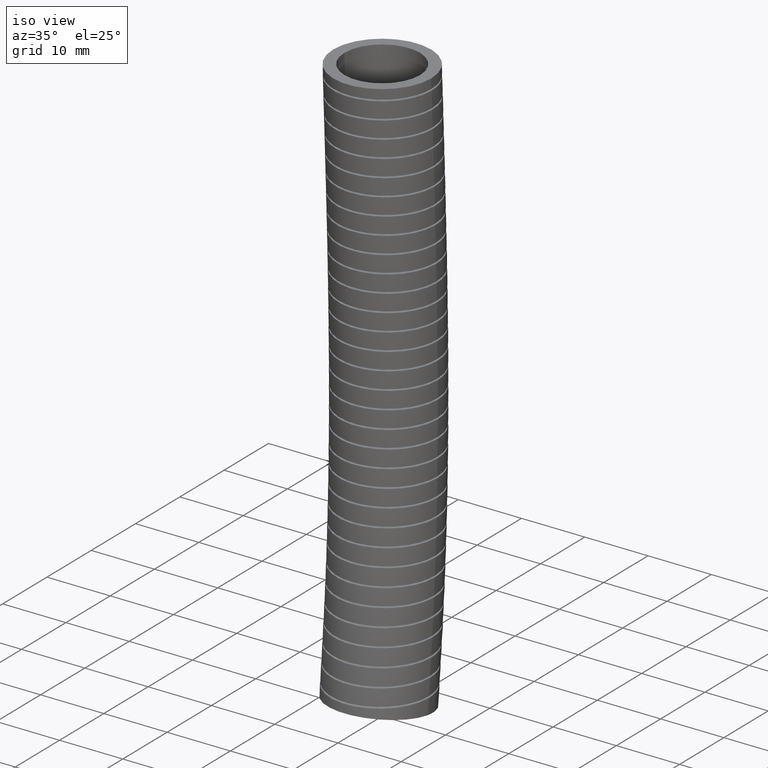
[diagram: clean part render]
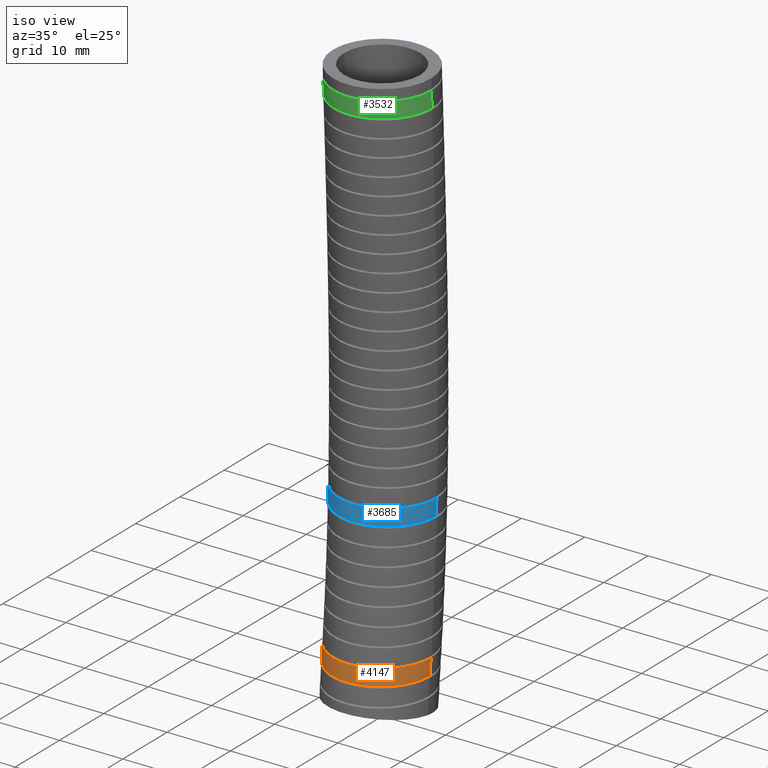
[diagram: same view with three faces highlighted in distinct colors, each labeled with its STEP entity id]
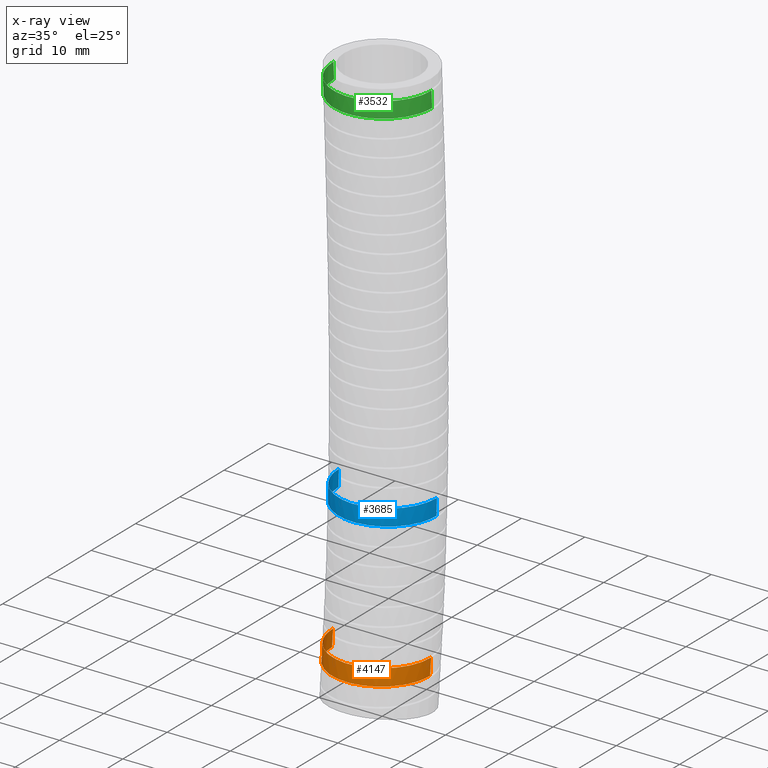
[diagram: x-ray of the same camera — body ghosted, the three highlighted faces saturated]
A machine part, iso view with three faces highlighted in distinct colors.
The next image is the same camera in x-ray (body ghosted, the three faces saturated) — at least one of them is partly hidden behind the body in this view.
Their STEP definitions:

[orange] entity #4147 — the highlighted face is a freeform B-spline surface patch.
#913 = CARTESIAN_POINT ( 'NONE',  ( -0.3030113365234432500, -0.04108837552844942000, -3.257299729500542800 ) ) ;
#914 = CARTESIAN_POINT ( 'NONE',  ( -0.2952359702919878900, -0.08023356019376953800, -3.257299729500542400 ) ) ;
#915 = CARTESIAN_POINT ( 'NONE',  ( -0.2894851474871009100, -0.09928313035796333700, -3.257299729500544600 ) ) ;
#916 = CARTESIAN_POINT ( 'NONE',  ( -0.2780288827015268100, -0.1270630369977044600, -3.257299729500544600 ) ) ;
#917 = CARTESIAN_POINT ( 'NONE',  ( -0.2737103979975252200, -0.1362279739294547100, -3.257299729500540100 ) ) ;
#918 = CARTESIAN_POINT ( 'NONE',  ( -0.2642854748717035100, -0.1539146598673039600, -3.257299729500541500 ) ) ;
#919 = CARTESIAN_POINT ( 'NONE',  ( -0.2591678966826095900, -0.1624747651432519900, -3.257299729500542400 ) ) ;
#920 = CARTESIAN_POINT ( 'NONE',  ( -0.2426242970605107000, -0.1873224864810883700, -3.257299729500543700 ) ) ;
#921 = CARTESIAN_POINT ( 'NONE',  ( -0.2299955393544777800, -0.2028094666097088600, -3.257299729500542800 ) ) ;
#922 = CARTESIAN_POINT ( 'NONE',  ( -0.2015338750742384200, -0.2313789863875006000, -3.257299729500541900 ) ) ;
#923 = CARTESIAN_POINT ( 'NONE',  ( -0.1861320974285784200, -0.2440378974267492800, -3.257299729500541900 ) ) ;
#924 = CARTESIAN_POINT ( 'NONE',  ( -0.1613364428609464200, -0.2606755630004499200, -3.257299729500541900 ) ) ;
#925 = CARTESIAN_POINT ( 'NONE',  ( -0.1527869834357760100, -0.2658267847499014600, -3.257299729500543700 ) ) ;
#926 = CARTESIAN_POINT ( 'NONE',  ( -0.1351051303766813400, -0.2753198285728689100, -3.257299729500542400 ) ) ;
#927 = CARTESIAN_POINT ( 'NONE',  ( -0.1259579582082928900, -0.2796607407075472600, -3.257299729500543700 ) ) ;
#928 = CARTESIAN_POINT ( 'NONE',  ( -0.09824142539255446800, -0.2911748160275767800, -3.257299729500542800 ) ) ;
#929 = CARTESIAN_POINT ( 'NONE',  ( -0.07920717341498902100, -0.2969670241820530100, -3.257299729500540100 ) ) ;
#930 = CARTESIAN_POINT ( 'NONE',  ( -0.04982420804945404700, -0.3028406000814025100, -3.257299729500541500 ) ) ;
#931 = CARTESIAN_POINT ( 'NONE',  ( -0.03984181917484418100, -0.3043301330608929600, -3.257299729500542400 ) ) ;
#932 = CARTESIAN_POINT ( 'NONE',  ( -0.01982304993927612400, -0.3063033753000968300, -3.257299729500543700 ) ) ;
#933 = CARTESIAN_POINT ( 'NONE',  ( -0.009838942171253681200, -0.3067874331805757200, -3.257299729500541500 ) ) ;
#934 = CARTESIAN_POINT ( 'NONE',  ( 0.02003974676161391500, -0.3067755822916862800, -3.257299729500541500 ) ) ;
#935 = CARTESIAN_POINT ( 'NONE',  ( 0.03986139915535288200, -0.3048296779818192600, -3.257299729500540600 ) ) ;
#936 = CARTESIAN_POINT ( 'NONE',  ( 0.06944345146055679000, -0.2989199930730189200, -3.257299729500540600 ) ) ;
#937 = CARTESIAN_POINT ( 'NONE',  ( 0.07923390780213723800, -0.2964511024617749700, -3.257299729500541900 ) ) ;
#938 = CARTESIAN_POINT ( 'NONE',  ( 0.09834203510598670000, -0.2906197970106317900, -3.257299729500542800 ) ) ;
#939 = CARTESIAN_POINT ( 'NONE',  ( 0.1170770472362686900, -0.2838764876986689100, -3.257299729500542400 ) ) ;
#940 = CARTESIAN_POINT ( 'NONE',  ( 0.1350756553977952900, -0.2753331892407188100, -3.257299729500540600 ) ) ;
#941 = CARTESIAN_POINT ( 'NONE',  ( 0.1527002858702273300, -0.2658757786788439900, -3.257299729500541500 ) ) ;
#942 = CARTESIAN_POINT ( 'NONE',  ( 0.1613719826634269200, -0.2606566291444307200, -3.257299729500542400 ) ) ;
#943 = CARTESIAN_POINT ( 'NONE',  ( 0.1863716571001015600, -0.2438672367914437900, -3.257299729500544100 ) ) ;
#944 = CARTESIAN_POINT ( 'NONE',  ( 0.2017216141646880300, -0.2311933043702474900, -3.257299729500542400 ) ) ;
#945 = CARTESIAN_POINT ( 'NONE',  ( 0.2298501019634840200, -0.2029526824587661900, -3.257299729500542400 ) ) ;
#946 = CARTESIAN_POINT ( 'NONE',  ( 0.2427208667521478200, -0.1872021266181922200, -3.257299729500542800 ) ) ;
#947 = CARTESIAN_POINT ( 'NONE',  ( 0.2648194137370358800, -0.1539615024946044700, -3.257299729500543700 ) ) ;
#948 = CARTESIAN_POINT ( 'NONE',  ( 0.2741714382221034400, -0.1364005282216115000, -3.257299729500541900 ) ) ;
#949 = CARTESIAN_POINT ( 'NONE',  ( 0.2856314913834013800, -0.1086358194928993700, -3.257299729500542800 ) ) ;
#950 = CARTESIAN_POINT ( 'NONE',  ( 0.2890318060516603400, -0.09909315087287468000, -3.257299729500541500 ) ) ;
#951 = CARTESIAN_POINT ( 'NONE',  ( 0.2948234588197345400, -0.07989902529516684800, -3.257299729500540600 ) ) ;
#952 = CARTESIAN_POINT ( 'NONE',  ( 0.2972319286272255300, -0.07021900760928045900, -3.257299729500542400 ) ) ;
#953 = CARTESIAN_POINT ( 'NONE',  ( 0.3030279026147748000, -0.04093564467334064000, -3.257299729500542400 ) ) ;
#954 = CARTESIAN_POINT ( 'NONE',  ( 0.3049999999999999400, -0.02109137741551087400, -3.257299729308426700 ) ) ;
#955 = CARTESIAN_POINT ( 'NONE',  ( 0.3049999999999999400, -0.0009114316352144768100, -3.257299729308426300 ) ) ;
#956 = B_SPLINE_CURVE_WITH_KNOTS ( 'NONE', 3,
 ( #955, #954, #953, #952, #951, #950, #949, #948, #947, #946, #945, #944, #943, #942, #941, #940, #939, #938, #937, #936, #935, #934, #933, #932, #931, #930, #929, #928, #927, #926, #925, #924, #923, #922, #921, #920, #919, #918, #917, #916, #915, #914, #913, #990, #989 ),
 .UNSPECIFIED., .F., .F.,
 ( 4, 2, 2, 2, 2, 2, 2, 2, 1, 2, 2, 2, 2, 2, 2, 2, 2, 2, 2, 2, 2, 2, 4 ),
 ( 0.0000000000000000000, 0.001515908611369039000, 0.002273862917053558300, 0.003031817222738077600, 0.004547725834107115700, 0.006063634445476153400, 0.007579543056845192000, 0.008337497362529710400, 0.009095451668214227900, 0.009853405973898747200, 0.01061136027958326500, 0.01212726889095230200, 0.01288522319663682100, 0.01364317750232134000, 0.01515908611369037500, 0.01591704041937489600, 0.01667499472505941700, 0.01819090333642845600, 0.01970681194779749400, 0.02046476625348201500, 0.02122272055916653300, 0.02273862917053557500, 0.02425453778190461400 ),
 .UNSPECIFIED. ) ;
#989 = CARTESIAN_POINT ( 'NONE',  ( -0.3050000000000000500, -0.0009114316692011314500, -3.257299729500542400 ) ) ;
#990 = CARTESIAN_POINT ( 'NONE',  ( -0.3050000000000000500, -0.02084508723958223100, -3.257299729500542400 ) ) ;
#4147 = ADVANCED_FACE ( 'NONE', ( #8789 ), #9129, .T. ) ;
#4221 = EDGE_CURVE ( 'NONE', #4294, #4300, #16607, .T. ) ;
#4294 = VERTEX_POINT ( 'NONE', #6402 ) ;
#4295 = EDGE_CURVE ( 'NONE', #4298, #4296, #6398, .T. ) ;
#4296 = VERTEX_POINT ( 'NONE', #6399 ) ;
#4297 = ORIENTED_EDGE ( 'NONE', *, *, #4299, .T. ) ;
#4298 = VERTEX_POINT ( 'NONE', #6400 ) ;
#4299 = EDGE_CURVE ( 'NONE', #4296, #4300, #6470, .T. ) ;
#4300 = VERTEX_POINT ( 'NONE', #6471 ) ;
#4302 = ORIENTED_EDGE ( 'NONE', *, *, #4221, .F. ) ;
#4304 = ORIENTED_EDGE ( 'NONE', *, *, #4327, .T. ) ;
#4325 = ORIENTED_EDGE ( 'NONE', *, *, #4295, .T. ) ;
#4326 = EDGE_LOOP ( 'NONE', ( #4304, #4325, #4297, #4302 ) ) ;
#4327 = EDGE_CURVE ( 'NONE', #4294, #4298, #956, .T. ) ;
#6398 = B_SPLINE_CURVE_WITH_KNOTS ( 'NONE', 3,
 ( #6475, #6474, #6473, #6472 ),
 .UNSPECIFIED., .F., .F.,
 ( 4, 4 ),
 ( 0.9121092750542080200, 0.9400877971328670500 ),
 .UNSPECIFIED. ) ;
#6399 = CARTESIAN_POINT ( 'NONE',  ( -0.3049999999999999400, -0.009911448503049463000, -3.356853065528679500 ) ) ;
#6400 = CARTESIAN_POINT ( 'NONE',  ( -0.3050000000000000500, -0.0009114316692011314500, -3.257299729500542400 ) ) ;
#6402 = CARTESIAN_POINT ( 'NONE',  ( 0.3049999999999999400, -0.0009114316352144768100, -3.257299729308426300 ) ) ;
#6439 = CARTESIAN_POINT ( 'NONE',  ( 0.1527078259657585200, -0.2749682113351590300, -3.356853065528682100 ) ) ;
#6440 = CARTESIAN_POINT ( 'NONE',  ( 0.1349927971651796700, -0.2844741568348622100, -3.356853065528681200 ) ) ;
#6441 = CARTESIAN_POINT ( 'NONE',  ( 0.1259640475500162800, -0.2887558627184434500, -3.356853065528679000 ) ) ;
#6442 = CARTESIAN_POINT ( 'NONE',  ( 0.09837795329793118400, -0.3002253253758056500, -3.356853065528679000 ) ) ;
#6443 = CARTESIAN_POINT ( 'NONE',  ( 0.07932559051245570400, -0.3060507125471228500, -3.356853065528679000 ) ) ;
#6444 = CARTESIAN_POINT ( 'NONE',  ( 0.04972190085577849600, -0.3119674279823643200, -3.356853065528678100 ) ) ;
#6445 = CARTESIAN_POINT ( 'NONE',  ( 0.03974693046850059900, -0.3134481059166359700, -3.356853065528681700 ) ) ;
#6446 = CARTESIAN_POINT ( 'NONE',  ( 0.01987218036339114300, -0.3154062901735444300, -3.356853065528683000 ) ) ;
#6447 = CARTESIAN_POINT ( 'NONE',  ( -1.351719192981374000E-005, -0.3163793041694900600, -3.356853065528680800 ) ) ;
#6448 = CARTESIAN_POINT ( 'NONE',  ( -0.01992086684158497400, -0.3154038279680456700, -3.356853065528679500 ) ) ;
#6449 = CARTESIAN_POINT ( 'NONE',  ( -0.03983923640904915600, -0.3134366600856161000, -3.356853065528679500 ) ) ;
#6450 = CARTESIAN_POINT ( 'NONE',  ( -0.04985730209139062300, -0.3119438853593490300, -3.356853065528679900 ) ) ;
#6451 = CARTESIAN_POINT ( 'NONE',  ( -0.07936420209146131900, -0.3060359013811490600, -3.356853065528679000 ) ) ;
#6452 = CARTESIAN_POINT ( 'NONE',  ( -0.09839875221471093600, -0.3002197602812017900, -3.356853065528675900 ) ) ;
#6453 = CARTESIAN_POINT ( 'NONE',  ( -0.1352189571502723500, -0.2849048623555057700, -3.356853065528677200 ) ) ;
#6454 = CARTESIAN_POINT ( 'NONE',  ( -0.1531434728608685500, -0.2752774266076596400, -3.356853065528679000 ) ) ;
#6455 = CARTESIAN_POINT ( 'NONE',  ( -0.1862598572323152500, -0.2530300494936074700, -3.356853065528679000 ) ) ;
#6456 = CARTESIAN_POINT ( 'NONE',  ( -0.2016179703481766600, -0.2403771390495932400, -3.356853065528679900 ) ) ;
#6457 = CARTESIAN_POINT ( 'NONE',  ( -0.2228326319907220100, -0.2190754104321681600, -3.356853065528679500 ) ) ;
#6458 = CARTESIAN_POINT ( 'NONE',  ( -0.2296193681834117500, -0.2115520564260327000, -3.356853065528678600 ) ) ;
#6459 = CARTESIAN_POINT ( 'NONE',  ( -0.2422879319445548600, -0.1960352221153848200, -3.356853065528679000 ) ) ;
#6460 = CARTESIAN_POINT ( 'NONE',  ( -0.2482053133748380600, -0.1880112750446067700, -3.356853065528679000 ) ) ;
#6461 = CARTESIAN_POINT ( 'NONE',  ( -0.2647328595493447800, -0.1631594696128227700, -3.356853065528679500 ) ) ;
#6462 = CARTESIAN_POINT ( 'NONE',  ( -0.2741477663858619700, -0.1455171649970006800, -3.356853065528679500 ) ) ;
#6463 = CARTESIAN_POINT ( 'NONE',  ( -0.2895175989868203900, -0.1082474899130656900, -3.356853065528679500 ) ) ;
#6464 = CARTESIAN_POINT ( 'NONE',  ( -0.2952598744401461800, -0.08915909823433916500, -3.356853065528676800 ) ) ;
#6465 = CARTESIAN_POINT ( 'NONE',  ( -0.3010700627940534600, -0.05987203347821661700, -3.356853065528678600 ) ) ;
#6466 = CARTESIAN_POINT ( 'NONE',  ( -0.3025361480508864100, -0.04999979585954689200, -3.356853065528679500 ) ) ;
#6467 = CARTESIAN_POINT ( 'NONE',  ( -0.3045042277361662000, -0.03003023146891961600, -3.356853065528678600 ) ) ;
#6468 = CARTESIAN_POINT ( 'NONE',  ( -0.3049999999999999400, -0.01991699837444335700, -3.356853065528676800 ) ) ;
#6469 = CARTESIAN_POINT ( 'NONE',  ( -0.3049999999999999400, -0.009911448503049463000, -3.356853065528679500 ) ) ;
#6470 = B_SPLINE_CURVE_WITH_KNOTS ( 'NONE', 3,
 ( #6469, #6468, #6467, #6466, #6465, #6464, #6463, #6462, #6461, #6460, #6459, #6458, #6457, #6456, #6455, #6454, #6453, #6452, #6451, #6450, #6449, #6448, #6447, #6446, #6445, #6444, #6443, #6442, #6441, #6440, #6439, #6513, #6512, #6511, #6510, #6509, #6508, #6507, #6506, #6505, #6504, #6503, #6502, #6501, #6500 ),
 .UNSPECIFIED., .F., .F.,
 ( 4, 2, 2, 2, 2, 2, 2, 2, 2, 2, 2, 1, 2, 2, 2, 2, 2, 2, 2, 2, 2, 2, 4 ),
 ( 0.02451689315472799900, 0.02528312052106074900, 0.02604934788739349900, 0.02758180262005900000, 0.02911425735272450000, 0.02988048471905725000, 0.03064671208539000400, 0.03217916681805550700, 0.03371162155072100800, 0.03524407628338651500, 0.03601030364971927200, 0.03677653101605202200, 0.03754275838238477200, 0.03830898574871752200, 0.03984144048138302900, 0.04060766784771578700, 0.04137389521404853700, 0.04290634994671403700, 0.04367257731304679400, 0.04443880467937955100, 0.04597125941204505100, 0.04750371414471056500, 0.04903616887737606600 ),
 .UNSPECIFIED. ) ;
#6471 = CARTESIAN_POINT ( 'NONE',  ( 0.3049999999999999900, -0.009911448503051936700, -3.356853065528693200 ) ) ;
#6472 = CARTESIAN_POINT ( 'NONE',  ( -0.3049999999999999400, -0.009911448503049463000, -3.356853065528679500 ) ) ;
#6473 = CARTESIAN_POINT ( 'NONE',  ( -0.3049999999999999400, -0.006854600528179615300, -3.323670918686750100 ) ) ;
#6474 = CARTESIAN_POINT ( 'NONE',  ( -0.3049999999999999400, -0.003846938443728915400, -3.290486782944280500 ) ) ;
#6475 = CARTESIAN_POINT ( 'NONE',  ( -0.3050000000000000500, -0.0009114316692011314500, -3.257299729500542400 ) ) ;
#6500 = CARTESIAN_POINT ( 'NONE',  ( 0.3049999999999999900, -0.009911448503051936700, -3.356853065528693200 ) ) ;
#6501 = CARTESIAN_POINT ( 'NONE',  ( 0.3050000000000000500, -0.03009198947460255100, -3.356853065528693200 ) ) ;
#6502 = CARTESIAN_POINT ( 'NONE',  ( 0.3030036196899169000, -0.05013031435090577900, -3.356853065528679500 ) ) ;
#6503 = CARTESIAN_POINT ( 'NONE',  ( 0.2952576208067374500, -0.08916581064986710300, -3.356853065528679500 ) ) ;
#6504 = CARTESIAN_POINT ( 'NONE',  ( 0.2894860543036997200, -0.1083387446874253800, -3.356853065528680800 ) ) ;
#6505 = CARTESIAN_POINT ( 'NONE',  ( 0.2741138497653221000, -0.1455845816220151000, -3.356853065528679500 ) ) ;
#6506 = CARTESIAN_POINT ( 'NONE',  ( 0.2647290363924730800, -0.1631678623997821800, -3.356853065528679900 ) ) ;
#6507 = CARTESIAN_POINT ( 'NONE',  ( 0.2481885174004281600, -0.1880352062005329600, -3.356853065528679000 ) ) ;
#6508 = CARTESIAN_POINT ( 'NONE',  ( 0.2422614671402637800, -0.1960712254660702500, -3.356853065528682100 ) ) ;
#6509 = CARTESIAN_POINT ( 'NONE',  ( 0.2295580927037616000, -0.2116234951146716000, -3.356853065528681700 ) ) ;
#6510 = CARTESIAN_POINT ( 'NONE',  ( 0.2227769645180945300, -0.2191340809230213100, -3.356853065528679500 ) ) ;
#6511 = CARTESIAN_POINT ( 'NONE',  ( 0.2016022912782906000, -0.2403873083186801600, -3.356853065528679500 ) ) ;
#6512 = CARTESIAN_POINT ( 'NONE',  ( 0.1862482676759916700, -0.2530420460760745600, -3.356853065528681200 ) ) ;
#6513 = CARTESIAN_POINT ( 'NONE',  ( 0.1613618649399929700, -0.2697542490543041200, -3.356853065528679000 ) ) ;
#8789 = FACE_OUTER_BOUND ( 'NONE', #4326, .T. ) ;
#8909 = CARTESIAN_POINT ( 'NONE',  ( 0.3049999999999999900, -0.02999999999999999900, -3.569999999999999400 ) ) ;
#8910 = CARTESIAN_POINT ( 'NONE',  ( 0.3049999999999999400, -0.01189670328115252300, -3.380058092153300100 ) ) ;
#8911 = CARTESIAN_POINT ( 'NONE',  ( 0.3049999999999999900, 0.03783273064349424600, -2.858291051460112500 ) ) ;
#8912 = CARTESIAN_POINT ( 'NONE',  ( 0.3049999999999999900, 0.07694042471324438700, -1.669468061939300500 ) ) ;
#8913 = CARTESIAN_POINT ( 'NONE',  ( 0.3050000000000000500, 0.03078003440073750300, -0.6678710777714059700 ) ) ;
#8914 = CARTESIAN_POINT ( 'NONE',  ( 0.3050000000000000500, 0.0000000000000000000, 0.0000000000000000000 ) ) ;
#8915 = CARTESIAN_POINT ( 'NONE',  ( 0.3049999999999999400, 0.5739397472009051300, -3.655771683852579600 ) ) ;
#8916 = CARTESIAN_POINT ( 'NONE',  ( 0.3049999999999999400, 0.5927977391964371900, -3.458550284486119800 ) ) ;
#8917 = CARTESIAN_POINT ( 'NONE',  ( 0.3049999999999999400, 0.6446003076157559300, -2.916786610132277200 ) ) ;
#8918 = CARTESIAN_POINT ( 'NONE',  ( 0.3050000000000000500, 0.6875905811525232500, -1.687708987936889400 ) ) ;
#8919 = CARTESIAN_POINT ( 'NONE',  ( 0.3050000000000000500, 0.6410401296320993300, -0.6751683643642422100 ) ) ;
#8920 = CARTESIAN_POINT ( 'NONE',  ( 0.3050000000000000500, 0.6100000000000001000, 0.0000000000000000000 ) ) ;
#8921 = CARTESIAN_POINT ( 'NONE',  ( -0.3049999999999998800, 0.5739397472009051300, -3.655771683852579600 ) ) ;
#8922 = CARTESIAN_POINT ( 'NONE',  ( -0.3049999999999998800, 0.5927977391964373000, -3.458550284486119800 ) ) ;
#8923 = CARTESIAN_POINT ( 'NONE',  ( -0.3049999999999999400, 0.6446003076157562600, -2.916786610132277200 ) ) ;
#8924 = CARTESIAN_POINT ( 'NONE',  ( -0.3049999999999999400, 0.6875905811525234700, -1.687708987936889400 ) ) ;
#8925 = CARTESIAN_POINT ( 'NONE',  ( -0.3049999999999999400, 0.6410401296320996600, -0.6751683643642422100 ) ) ;
#8926 = CARTESIAN_POINT ( 'NONE',  ( -0.3049999999999999400, 0.6100000000000001000, 0.0000000000000000000 ) ) ;
#8927 = CARTESIAN_POINT ( 'NONE',  ( -0.3049999999999999900, -0.02999999999999996100, -3.569999999999999400 ) ) ;
#8928 = CARTESIAN_POINT ( 'NONE',  ( -0.3049999999999999400, -0.01189670328115248300, -3.380058092153300100 ) ) ;
#8929 = CARTESIAN_POINT ( 'NONE',  ( -0.3049999999999999900, 0.03783273064349428100, -2.858291051460112500 ) ) ;
#8930 = CARTESIAN_POINT ( 'NONE',  ( -0.3049999999999999900, 0.07694042471324441500, -1.669468061939300500 ) ) ;
#8931 = CARTESIAN_POINT ( 'NONE',  ( -0.3050000000000000500, 0.03078003440073754200, -0.6678710777714059700 ) ) ;
#8932 = CARTESIAN_POINT ( 'NONE',  ( -0.3050000000000000500, 3.735172737399427600E-017, 0.0000000000000000000 ) ) ;
#8933 = CARTESIAN_POINT ( 'NONE',  ( -0.3050000000000000500, -0.6339397472009050700, -3.484228316147418800 ) ) ;
#8934 = CARTESIAN_POINT ( 'NONE',  ( -0.3050000000000000500, -0.6165911457587421900, -3.301565899820480900 ) ) ;
#8935 = CARTESIAN_POINT ( 'NONE',  ( -0.3050000000000000500, -0.5689348463287677800, -2.799795492787948300 ) ) ;
#8936 = CARTESIAN_POINT ( 'NONE',  ( -0.3050000000000001000, -0.5337097317260344200, -1.651227135941712300 ) ) ;
#8937 = CARTESIAN_POINT ( 'NONE',  ( -0.3050000000000001600, -0.5794800608306244200, -0.6605737911785694000 ) ) ;
#8938 = CARTESIAN_POINT ( 'NONE',  ( -0.3050000000000001000, -0.6100000000000001000, 0.0000000000000000000 ) ) ;
#8939 = CARTESIAN_POINT ( 'NONE',  ( 0.3049999999999999400, -0.6339397472009050700, -3.484228316147418800 ) ) ;
#8940 = CARTESIAN_POINT ( 'NONE',  ( 0.3049999999999999400, -0.6165911457587421900, -3.301565899820480900 ) ) ;
#8941 = CARTESIAN_POINT ( 'NONE',  ( 0.3049999999999999400, -0.5689348463287677800, -2.799795492787948300 ) ) ;
#8942 = CARTESIAN_POINT ( 'NONE',  ( 0.3050000000000000500, -0.5337097317260344200, -1.651227135941712300 ) ) ;
#9129 =( BOUNDED_SURFACE ( )  B_SPLINE_SURFACE ( 3, 3, ( 
 ( #9139, #9138, #9137, #9136, #9135, #9134 ),
 ( #9133, #9132, #8942, #8941, #8940, #8939 ),
 ( #8938, #8937, #8936, #8935, #8934, #8933 ),
 ( #8932, #8931, #8930, #8929, #8928, #8927 ),
 ( #8926, #8925, #8924, #8923, #8922, #8921 ),
 ( #8920, #8919, #8918, #8917, #8916, #8915 ),
 ( #8914, #8913, #8912, #8911, #8910, #8909 ) ),
 .UNSPECIFIED., .F., .F., .T. ) 
 B_SPLINE_SURFACE_WITH_KNOTS ( ( 4, 3, 4 ),
 ( 4, 1, 1, 4 ),
 ( 0.0000000000000000000, 0.5000000000000000000, 1.000000000000000000 ),
 ( 0.0000000000000000000, 0.5599999999999999400, 0.8398242262648183400, 1.000000000000000000 ),
 .UNSPECIFIED. ) 
 GEOMETRIC_REPRESENTATION_ITEM ( )  RATIONAL_B_SPLINE_SURFACE ( (
 ( 1.000000000000000000, 1.000000000000000000, 1.000000000000000200, 1.000000000000000000, 1.000000000000000000, 1.000000000000000000),
 ( 0.3333333333333333100, 0.3333333333333333100, 0.3333333333333333100, 0.3333333333333333100, 0.3333333333333333100, 0.3333333333333333100),
 ( 0.3333333333333333100, 0.3333333333333333100, 0.3333333333333333100, 0.3333333333333333100, 0.3333333333333333100, 0.3333333333333333100),
 ( 1.000000000000000000, 1.000000000000000000, 1.000000000000000200, 1.000000000000000000, 1.000000000000000000, 1.000000000000000000),
 ( 0.3333333333333333100, 0.3333333333333333100, 0.3333333333333333100, 0.3333333333333333100, 0.3333333333333333100, 0.3333333333333333100),
 ( 0.3333333333333333100, 0.3333333333333333100, 0.3333333333333333100, 0.3333333333333333100, 0.3333333333333333100, 0.3333333333333333100),
 ( 1.000000000000000000, 1.000000000000000000, 1.000000000000000200, 1.000000000000000000, 1.000000000000000000, 1.000000000000000000) ) ) 
 REPRESENTATION_ITEM ( '' )  SURFACE ( )  );
#9132 = CARTESIAN_POINT ( 'NONE',  ( 0.3050000000000000500, -0.5794800608306244200, -0.6605737911785694000 ) ) ;
#9133 = CARTESIAN_POINT ( 'NONE',  ( 0.3050000000000000500, -0.6100000000000001000, 0.0000000000000000000 ) ) ;
#9134 = CARTESIAN_POINT ( 'NONE',  ( 0.3049999999999999900, -0.02999999999999999900, -3.569999999999999400 ) ) ;
#9135 = CARTESIAN_POINT ( 'NONE',  ( 0.3049999999999999400, -0.01189670328115252300, -3.380058092153300100 ) ) ;
#9136 = CARTESIAN_POINT ( 'NONE',  ( 0.3049999999999999900, 0.03783273064349424600, -2.858291051460112500 ) ) ;
#9137 = CARTESIAN_POINT ( 'NONE',  ( 0.3049999999999999900, 0.07694042471324438700, -1.669468061939300500 ) ) ;
#9138 = CARTESIAN_POINT ( 'NONE',  ( 0.3050000000000000500, 0.03078003440073750300, -0.6678710777714059700 ) ) ;
#9139 = CARTESIAN_POINT ( 'NONE',  ( 0.3050000000000000500, 0.0000000000000000000, 0.0000000000000000000 ) ) ;
#10489 = CARTESIAN_POINT ( 'NONE',  ( 0.3049999999999999900, -0.003846938432031886700, -3.290486782815224700 ) ) ;
#10490 = CARTESIAN_POINT ( 'NONE',  ( 0.3049999999999999400, -0.0009114316352144768100, -3.257299729308426300 ) ) ;
#10493 = CARTESIAN_POINT ( 'NONE',  ( 0.3049999999999999900, -0.009911448503051936700, -3.356853065528693200 ) ) ;
#10494 = CARTESIAN_POINT ( 'NONE',  ( 0.3049999999999999900, -0.006854600522236105700, -3.323670918622233700 ) ) ;
#16607 = B_SPLINE_CURVE_WITH_KNOTS ( 'NONE', 3,
 ( #10490, #10489, #10494, #10493 ),
 .UNSPECIFIED., .F., .F.,
 ( 4, 4 ),
 ( 0.9121092749998006600, 0.9400877971328709400 ),
 .UNSPECIFIED. ) ;

[blue] entity #3685 — the highlighted face is a freeform B-spline surface patch.
#3685 = ADVANCED_FACE ( 'NONE', ( #12559 ), #13157, .T. ) ;
#3687 = ORIENTED_EDGE ( 'NONE', *, *, #3701, .T. ) ;
#3701 = EDGE_CURVE ( 'NONE', #3801, #3802, #13249, .T. ) ;
#3702 = EDGE_CURVE ( 'NONE', #3802, #3703, #13232, .T. ) ;
#3703 = VERTEX_POINT ( 'NONE', #13231 ) ;
#3704 = ORIENTED_EDGE ( 'NONE', *, *, #3705, .T. ) ;
#3705 = EDGE_CURVE ( 'NONE', #3703, #4132, #13225, .T. ) ;
#3788 = EDGE_LOOP ( 'NONE', ( #3687, #3803, #3704, #4133 ) ) ;
#3801 = VERTEX_POINT ( 'NONE', #13968 ) ;
#3802 = VERTEX_POINT ( 'NONE', #14090 ) ;
#3803 = ORIENTED_EDGE ( 'NONE', *, *, #3702, .T. ) ;
#4132 = VERTEX_POINT ( 'NONE', #8738 ) ;
#4133 = ORIENTED_EDGE ( 'NONE', *, *, #4134, .F. ) ;
#4134 = EDGE_CURVE ( 'NONE', #3801, #4132, #8739, .T. ) ;
#8263 = CARTESIAN_POINT ( 'NONE',  ( 0.3050000000000000500, 0.04762693435156142200, -2.478890630399940100 ) ) ;
#8265 = CARTESIAN_POINT ( 'NONE',  ( 0.3050000000000001000, 0.04878316757936334400, -2.445579867282462200 ) ) ;
#8418 = CARTESIAN_POINT ( 'NONE',  ( 0.3050000000000001000, 0.04983046100250379500, -2.412264699031035200 ) ) ;
#8420 = CARTESIAN_POINT ( 'NONE',  ( 0.3050000000000000500, 0.05077321592231180700, -2.378945303618446700 ) ) ;
#8738 = CARTESIAN_POINT ( 'NONE',  ( 0.3050000000000000500, 0.04762693435156142200, -2.478890630399940100 ) ) ;
#8739 = B_SPLINE_CURVE_WITH_KNOTS ( 'NONE', 3,
 ( #8420, #8418, #8265, #8263 ),
 .UNSPECIFIED., .F., .F.,
 ( 4, 4 ),
 ( 0.6655699774920165200, 0.6935919824838685500 ),
 .UNSPECIFIED. ) ;
#12559 = FACE_OUTER_BOUND ( 'NONE', #3788, .T. ) ;
#13077 = CARTESIAN_POINT ( 'NONE',  ( -0.3049999999999999400, 0.6100000000000001000, 0.0000000000000000000 ) ) ;
#13078 = CARTESIAN_POINT ( 'NONE',  ( -0.3049999999999999900, -0.02999999999999996100, -3.569999999999999400 ) ) ;
#13079 = CARTESIAN_POINT ( 'NONE',  ( -0.3049999999999999400, -0.01189670328115248300, -3.380058092153300100 ) ) ;
#13080 = CARTESIAN_POINT ( 'NONE',  ( -0.3049999999999999900, 0.03783273064349428100, -2.858291051460112500 ) ) ;
#13081 = CARTESIAN_POINT ( 'NONE',  ( -0.3049999999999999900, 0.07694042471324441500, -1.669468061939300500 ) ) ;
#13082 = CARTESIAN_POINT ( 'NONE',  ( -0.3050000000000000500, 0.03078003440073754200, -0.6678710777714059700 ) ) ;
#13083 = CARTESIAN_POINT ( 'NONE',  ( -0.3050000000000000500, 3.735172737399427600E-017, 0.0000000000000000000 ) ) ;
#13085 = CARTESIAN_POINT ( 'NONE',  ( 0.3050000000000000500, 0.03078003440073750300, -0.6678710777714059700 ) ) ;
#13086 = CARTESIAN_POINT ( 'NONE',  ( 0.3050000000000000500, 0.0000000000000000000, 0.0000000000000000000 ) ) ;
#13089 = CARTESIAN_POINT ( 'NONE',  ( 0.3049999999999999400, 0.6446003076157559300, -2.916786610132277200 ) ) ;
#13090 = CARTESIAN_POINT ( 'NONE',  ( 0.3050000000000000500, 0.6875905811525232500, -1.687708987936889400 ) ) ;
#13091 = CARTESIAN_POINT ( 'NONE',  ( 0.3050000000000000500, 0.6410401296320993300, -0.6751683643642422100 ) ) ;
#13092 = CARTESIAN_POINT ( 'NONE',  ( 0.3050000000000000500, 0.6100000000000001000, 0.0000000000000000000 ) ) ;
#13093 = CARTESIAN_POINT ( 'NONE',  ( -0.3049999999999998800, 0.5739397472009051300, -3.655771683852579600 ) ) ;
#13094 = CARTESIAN_POINT ( 'NONE',  ( -0.3049999999999998800, 0.5927977391964373000, -3.458550284486119800 ) ) ;
#13095 = CARTESIAN_POINT ( 'NONE',  ( -0.3049999999999999400, 0.6446003076157562600, -2.916786610132277200 ) ) ;
#13096 = CARTESIAN_POINT ( 'NONE',  ( -0.3049999999999999400, 0.6875905811525234700, -1.687708987936889400 ) ) ;
#13097 = CARTESIAN_POINT ( 'NONE',  ( -0.3049999999999999400, 0.6410401296320996600, -0.6751683643642422100 ) ) ;
#13098 = CARTESIAN_POINT ( 'NONE',  ( -0.3050000000000000500, -0.6339397472009050700, -3.484228316147418800 ) ) ;
#13099 = CARTESIAN_POINT ( 'NONE',  ( -0.3050000000000000500, -0.6165911457587421900, -3.301565899820480900 ) ) ;
#13100 = CARTESIAN_POINT ( 'NONE',  ( -0.3050000000000000500, -0.5689348463287677800, -2.799795492787948300 ) ) ;
#13101 = CARTESIAN_POINT ( 'NONE',  ( -0.3050000000000001000, -0.5337097317260344200, -1.651227135941712300 ) ) ;
#13102 = CARTESIAN_POINT ( 'NONE',  ( -0.3050000000000001600, -0.5794800608306244200, -0.6605737911785694000 ) ) ;
#13103 = CARTESIAN_POINT ( 'NONE',  ( -0.3050000000000001000, -0.6100000000000001000, 0.0000000000000000000 ) ) ;
#13104 = CARTESIAN_POINT ( 'NONE',  ( 0.3049999999999999400, -0.6339397472009050700, -3.484228316147418800 ) ) ;
#13105 = CARTESIAN_POINT ( 'NONE',  ( 0.3049999999999999400, -0.6165911457587421900, -3.301565899820480900 ) ) ;
#13114 = CARTESIAN_POINT ( 'NONE',  ( 0.3049999999999999900, -0.02999999999999999900, -3.569999999999999400 ) ) ;
#13115 = CARTESIAN_POINT ( 'NONE',  ( 0.3049999999999999400, -0.01189670328115252300, -3.380058092153300100 ) ) ;
#13116 = CARTESIAN_POINT ( 'NONE',  ( 0.3049999999999999900, 0.03783273064349424600, -2.858291051460112500 ) ) ;
#13117 = CARTESIAN_POINT ( 'NONE',  ( 0.3049999999999999900, 0.07694042471324438700, -1.669468061939300500 ) ) ;
#13118 = CARTESIAN_POINT ( 'NONE',  ( 0.3050000000000000500, 0.03078003440073750300, -0.6678710777714059700 ) ) ;
#13119 = CARTESIAN_POINT ( 'NONE',  ( 0.3050000000000000500, 0.0000000000000000000, 0.0000000000000000000 ) ) ;
#13120 = CARTESIAN_POINT ( 'NONE',  ( 0.3049999999999999400, 0.5739397472009051300, -3.655771683852579600 ) ) ;
#13121 = CARTESIAN_POINT ( 'NONE',  ( 0.3049999999999999400, 0.5927977391964371900, -3.458550284486119800 ) ) ;
#13136 = CARTESIAN_POINT ( 'NONE',  ( 0.3049999999999999400, -0.5689348463287677800, -2.799795492787948300 ) ) ;
#13137 = CARTESIAN_POINT ( 'NONE',  ( 0.3050000000000000500, -0.5337097317260344200, -1.651227135941712300 ) ) ;
#13138 = CARTESIAN_POINT ( 'NONE',  ( 0.3050000000000000500, -0.5794800608306244200, -0.6605737911785694000 ) ) ;
#13139 = CARTESIAN_POINT ( 'NONE',  ( 0.3050000000000000500, -0.6100000000000001000, 0.0000000000000000000 ) ) ;
#13140 = CARTESIAN_POINT ( 'NONE',  ( 0.3049999999999999900, -0.02999999999999999900, -3.569999999999999400 ) ) ;
#13141 = CARTESIAN_POINT ( 'NONE',  ( 0.3049999999999999400, -0.01189670328115252300, -3.380058092153300100 ) ) ;
#13142 = CARTESIAN_POINT ( 'NONE',  ( 0.3049999999999999900, 0.03783273064349424600, -2.858291051460112500 ) ) ;
#13143 = CARTESIAN_POINT ( 'NONE',  ( 0.3049999999999999900, 0.07694042471324438700, -1.669468061939300500 ) ) ;
#13157 =( BOUNDED_SURFACE ( )  B_SPLINE_SURFACE ( 3, 3, ( 
 ( #13086, #13085, #13143, #13142, #13141, #13140 ),
 ( #13139, #13138, #13137, #13136, #13105, #13104 ),
 ( #13103, #13102, #13101, #13100, #13099, #13098 ),
 ( #13083, #13082, #13081, #13080, #13079, #13078 ),
 ( #13077, #13097, #13096, #13095, #13094, #13093 ),
 ( #13092, #13091, #13090, #13089, #13121, #13120 ),
 ( #13119, #13118, #13117, #13116, #13115, #13114 ) ),
 .UNSPECIFIED., .F., .F., .F. ) 
 B_SPLINE_SURFACE_WITH_KNOTS ( ( 4, 3, 4 ),
 ( 4, 1, 1, 4 ),
 ( 0.0000000000000000000, 0.5000000000000000000, 1.000000000000000000 ),
 ( 0.0000000000000000000, 0.5599999999999999400, 0.8398242262648183400, 1.000000000000000000 ),
 .UNSPECIFIED. ) 
 GEOMETRIC_REPRESENTATION_ITEM ( )  RATIONAL_B_SPLINE_SURFACE ( (
 ( 1.000000000000000000, 1.000000000000000000, 1.000000000000000200, 1.000000000000000000, 1.000000000000000000, 1.000000000000000000),
 ( 0.3333333333333333100, 0.3333333333333333100, 0.3333333333333333100, 0.3333333333333333100, 0.3333333333333333100, 0.3333333333333333100),
 ( 0.3333333333333333100, 0.3333333333333333100, 0.3333333333333333100, 0.3333333333333333100, 0.3333333333333333100, 0.3333333333333333100),
 ( 1.000000000000000000, 1.000000000000000000, 1.000000000000000200, 1.000000000000000000, 1.000000000000000000, 1.000000000000000000),
 ( 0.3333333333333333100, 0.3333333333333333100, 0.3333333333333333100, 0.3333333333333333100, 0.3333333333333333100, 0.3333333333333333100),
 ( 0.3333333333333333100, 0.3333333333333333100, 0.3333333333333333100, 0.3333333333333333100, 0.3333333333333333100, 0.3333333333333333100),
 ( 1.000000000000000000, 1.000000000000000000, 1.000000000000000200, 1.000000000000000000, 1.000000000000000000, 1.000000000000000000) ) ) 
 REPRESENTATION_ITEM ( '' )  SURFACE ( )  );
#13195 = CARTESIAN_POINT ( 'NONE',  ( -0.1859309338704791500, -0.1909810178573593300, -2.378945303617192600 ) ) ;
#13196 = CARTESIAN_POINT ( 'NONE',  ( -0.1778246430677591400, -0.1969951533843959100, -2.378945303617192100 ) ) ;
#13197 = CARTESIAN_POINT ( 'NONE',  ( -0.1528204871455703700, -0.2136923374195837400, -2.378945303617190800 ) ) ;
#13198 = CARTESIAN_POINT ( 'NONE',  ( -0.1352913220111265100, -0.2230448990275247500, -2.378945303617190800 ) ) ;
#13199 = CARTESIAN_POINT ( 'NONE',  ( -0.09855510846545458000, -0.2382782524495196100, -2.378945303617190400 ) ) ;
#13200 = CARTESIAN_POINT ( 'NONE',  ( -0.07913717557198971000, -0.2441777095918230600, -2.378945303617190800 ) ) ;
#13201 = CARTESIAN_POINT ( 'NONE',  ( -0.04005919287968749700, -0.2519563308294327500, -2.378945303617191300 ) ) ;
#13202 = CARTESIAN_POINT ( 'NONE',  ( -0.02030206169118367600, -0.2539194712546990500, -2.378945303617192100 ) ) ;
#13203 = CARTESIAN_POINT ( 'NONE',  ( 0.009663512383467290000, -0.2539513723832742500, -2.378945303617192100 ) ) ;
#13212 = CARTESIAN_POINT ( 'NONE',  ( 0.01975965819063551700, -0.2534650905064554400, -2.378945303617191300 ) ) ;
#13213 = CARTESIAN_POINT ( 'NONE',  ( 0.03967854609987610900, -0.2515167906161242500, -2.378945303617192100 ) ) ;
#13214 = CARTESIAN_POINT ( 'NONE',  ( 0.04952786596829806400, -0.2500602545675196200, -2.378945303617194800 ) ) ;
#13215 = CARTESIAN_POINT ( 'NONE',  ( 0.07875292901773318900, -0.2442762345817288700, -2.378945303617194400 ) ) ;
#13216 = CARTESIAN_POINT ( 'NONE',  ( 0.09780894485302510400, -0.2385482211710017200, -2.378945303617192100 ) ) ;
#13217 = CARTESIAN_POINT ( 'NONE',  ( 0.1350304749156393500, -0.2231914527805722600, -2.378945303617193000 ) ) ;
#13218 = CARTESIAN_POINT ( 'NONE',  ( 0.1525958355937790700, -0.2138078721496178800, -2.378945303617193900 ) ) ;
#13219 = CARTESIAN_POINT ( 'NONE',  ( 0.1773932648974272700, -0.1972998975029064700, -2.378945303617193500 ) ) ;
#13220 = CARTESIAN_POINT ( 'NONE',  ( 0.1854014280714505500, -0.1913876727813070300, -2.378945303617192100 ) ) ;
#13222 = CARTESIAN_POINT ( 'NONE',  ( -0.3045022631452473100, 0.02754767261553343500, -2.478890630591160400 ) ) ;
#13223 = CARTESIAN_POINT ( 'NONE',  ( -0.3050000000000001600, 0.03764139521374901300, -2.478890630591159500 ) ) ;
#13224 = CARTESIAN_POINT ( 'NONE',  ( -0.3050000000000000500, 0.04762693433828677600, -2.478890630591160400 ) ) ;
#13225 = B_SPLINE_CURVE_WITH_KNOTS ( 'NONE', 3,
 ( #13224, #13223, #13222, #13248, #13247, #13246, #13245, #13244, #13243, #13242, #13241, #13240, #13239, #13238, #13237, #13236, #13334, #13333, #13332, #13331, #13330, #13329, #13328, #13327, #13326, #13325, #13324, #13323, #13322, #13321, #13320, #13319, #13318, #13317, #13316, #13315, #13314, #13313, #13312, #13311, #13310, #13309, #13308, #13307, #13306 ),
 .UNSPECIFIED., .F., .F.,
 ( 4, 2, 2, 2, 2, 2, 2, 2, 2, 2, 2, 1, 2, 2, 2, 2, 2, 2, 2, 2, 2, 2, 4 ),
 ( 0.02447060056067219800, 0.02523534043249534700, 0.02600008030431849600, 0.02752956004796479300, 0.02905903979161109100, 0.02982377966343424300, 0.03058851953525739200, 0.03211799927890369300, 0.03364747902254999800, 0.03517695876619629500, 0.03594169863801945100, 0.03670643850984260000, 0.03747117838166574800, 0.03823591825348890400, 0.03976539799713520200, 0.04053013786895835700, 0.04129487774078151300, 0.04282435748442781100, 0.04358909735625096000, 0.04435383722807410800, 0.04588331697172042000, 0.04741279671536671700, 0.04894227645901302200 ),
 .UNSPECIFIED. ) ;
#13227 = CARTESIAN_POINT ( 'NONE',  ( -0.3050000000000000500, 0.04762693433828677600, -2.478890630591160400 ) ) ;
#13228 = CARTESIAN_POINT ( 'NONE',  ( -0.3050000000000000500, 0.04878316757536509100, -2.445579867409694200 ) ) ;
#13229 = CARTESIAN_POINT ( 'NONE',  ( -0.3050000000000000500, 0.04983046100072403100, -2.412264699094031500 ) ) ;
#13230 = CARTESIAN_POINT ( 'NONE',  ( -0.3050000000000000500, 0.05077321592238287500, -2.378945303617191700 ) ) ;
#13231 = CARTESIAN_POINT ( 'NONE',  ( -0.3050000000000000500, 0.04762693433828677600, -2.478890630591160400 ) ) ;
#13232 = B_SPLINE_CURVE_WITH_KNOTS ( 'NONE', 3,
 ( #13230, #13229, #13228, #13227 ),
 .UNSPECIFIED., .F., .F.,
 ( 4, 4 ),
 ( 0.6655699774916643600, 0.6935919825375532800 ),
 .UNSPECIFIED. ) ;
#13233 = CARTESIAN_POINT ( 'NONE',  ( -0.3050000000000000500, 0.05077321592238287500, -2.378945303617191700 ) ) ;
#13234 = CARTESIAN_POINT ( 'NONE',  ( -0.3050000000000001000, 0.03080479074792975800, -2.378945303617191300 ) ) ;
#13235 = CARTESIAN_POINT ( 'NONE',  ( -0.3030541713226293500, 0.01104675230987540300, -2.378945303617192100 ) ) ;
#13236 = CARTESIAN_POINT ( 'NONE',  ( -0.1528905045964775400, -0.2168297941105943300, -2.478890630591160000 ) ) ;
#13237 = CARTESIAN_POINT ( 'NONE',  ( -0.1860176382392228200, -0.1947114610850041200, -2.478890630591160400 ) ) ;
#13238 = CARTESIAN_POINT ( 'NONE',  ( -0.2013829363132886900, -0.1821292795744534600, -2.478890630591160000 ) ) ;
#13239 = CARTESIAN_POINT ( 'NONE',  ( -0.2226114382041555800, -0.1609434690201645700, -2.478890630591160900 ) ) ;
#13240 = CARTESIAN_POINT ( 'NONE',  ( -0.2294079271401327800, -0.1534559974731753200, -2.478890630591160900 ) ) ;
#13241 = CARTESIAN_POINT ( 'NONE',  ( -0.2421035018097603100, -0.1380005574049502600, -2.478890630591160400 ) ) ;
#13242 = CARTESIAN_POINT ( 'NONE',  ( -0.2480341278514235400, -0.1300071974798385800, -2.478890630591162200 ) ) ;
#13243 = CARTESIAN_POINT ( 'NONE',  ( -0.2646004077735335500, -0.1052466815078384700, -2.478890630591162200 ) ) ;
#13244 = CARTESIAN_POINT ( 'NONE',  ( -0.2740355155917352800, -0.08767553618507799300, -2.478890630591160900 ) ) ;
#13245 = CARTESIAN_POINT ( 'NONE',  ( -0.2894594705316564400, -0.05049995263127419300, -2.478890630591160400 ) ) ;
#13246 = CARTESIAN_POINT ( 'NONE',  ( -0.2952227158728204500, -0.03145639664729527700, -2.478890630591160000 ) ) ;
#13247 = CARTESIAN_POINT ( 'NONE',  ( -0.3010547439263505700, -0.002233203258918987800, -2.478890630591159500 ) ) ;
#13248 = CARTESIAN_POINT ( 'NONE',  ( -0.3025264858621872200, 0.007618313831455478900, -2.478890630591159500 ) ) ;
#13249 = B_SPLINE_CURVE_WITH_KNOTS ( 'NONE', 3,
 ( #13364, #13363, #13362, #13361, #13360, #13342, #13341, #13340, #13339, #13338, #13337, #13336, #13335, #13220, #13219, #13218, #13217, #13216, #13215, #13214, #13213, #13212, #13203, #13202, #13201, #13200, #13199, #13198, #13197, #13196, #13195, #13354, #13353, #13352, #13351, #13350, #13349, #13348, #13347, #13346, #13235, #13234, #13233 ),
 .UNSPECIFIED., .F., .F.,
 ( 4, 2, 2, 2, 2, 2, 2, 2, 2, 2, 2, 2, 2, 2, 2, 2, 1, 2, 2, 2, 2, 4 ),
 ( 0.0000000000000000000, 0.0007646385570034159300, 0.001529277114006831900, 0.003058554228013663700, 0.004587831342020494900, 0.006117108456027327500, 0.006881747013030741100, 0.007646385570034155600, 0.009175662684040982900, 0.01070493979804780900, 0.01146957835505122200, 0.01223421691205463600, 0.01376349402606146100, 0.01529277114006828700, 0.01682204825407511400, 0.01758668681107852800, 0.01835132536808194200, 0.01911596392508535500, 0.01988060248208876500, 0.02140987959609559600, 0.02293915671010242700, 0.02446843382410925400 ),
 .UNSPECIFIED. ) ;
#13306 = CARTESIAN_POINT ( 'NONE',  ( 0.3050000000000000500, 0.04762693435156142200, -2.478890630399940100 ) ) ;
#13307 = CARTESIAN_POINT ( 'NONE',  ( 0.3050000000000001600, 0.02748543307467832600, -2.478890630399940500 ) ) ;
#13308 = CARTESIAN_POINT ( 'NONE',  ( 0.3029957515154675400, 0.007489417105942149100, -2.478890630591160000 ) ) ;
#13309 = CARTESIAN_POINT ( 'NONE',  ( 0.2952217184166720000, -0.03145799012692851400, -2.478890630591160400 ) ) ;
#13310 = CARTESIAN_POINT ( 'NONE',  ( 0.2894263615874915200, -0.05059299359882461800, -2.478890630591159500 ) ) ;
#13311 = CARTESIAN_POINT ( 'NONE',  ( 0.2740095631499247500, -0.08772479707283770100, -2.478890630591160000 ) ) ;
#13312 = CARTESIAN_POINT ( 'NONE',  ( 0.2646009871399148700, -0.1052468927936732100, -2.478890630591160400 ) ) ;
#13313 = CARTESIAN_POINT ( 'NONE',  ( 0.2480261732880418600, -0.1300185476494691600, -2.478890630591160900 ) ) ;
#13314 = CARTESIAN_POINT ( 'NONE',  ( 0.2420879044807841300, -0.1380220057157705600, -2.478890630591159500 ) ) ;
#13315 = CARTESIAN_POINT ( 'NONE',  ( 0.2293630783324291400, -0.1535081238468670200, -2.478890630591160000 ) ) ;
#13316 = CARTESIAN_POINT ( 'NONE',  ( 0.2225740109165805800, -0.1609824805137474400, -2.478890630591162700 ) ) ;
#13317 = CARTESIAN_POINT ( 'NONE',  ( 0.2013814460595376700, -0.1821274388998621000, -2.478890630591162700 ) ) ;
#13318 = CARTESIAN_POINT ( 'NONE',  ( 0.1860223060043713100, -0.1947100735826417000, -2.478890630591160900 ) ) ;
#13319 = CARTESIAN_POINT ( 'NONE',  ( 0.1611425016777670300, -0.2113192326303407500, -2.478890630591161800 ) ) ;
#13320 = CARTESIAN_POINT ( 'NONE',  ( 0.1524936735622688700, -0.2164992890016412000, -2.478890630591160900 ) ) ;
#13321 = CARTESIAN_POINT ( 'NONE',  ( 0.1347895041235130700, -0.2259435159316714200, -2.478890630591160400 ) ) ;
#13322 = CARTESIAN_POINT ( 'NONE',  ( 0.1257686729744110200, -0.2301961353012913500, -2.478890630591161800 ) ) ;
#13323 = CARTESIAN_POINT ( 'NONE',  ( 0.09821418057216443900, -0.2415851312382909800, -2.478890630591161800 ) ) ;
#13324 = CARTESIAN_POINT ( 'NONE',  ( 0.07919323197051364400, -0.2473657544824220700, -2.478890630591160000 ) ) ;
#13325 = CARTESIAN_POINT ( 'NONE',  ( 0.04965532928637870400, -0.2532364149049078900, -2.478890630591160000 ) ) ;
#13326 = CARTESIAN_POINT ( 'NONE',  ( 0.03969193107396182300, -0.2547075540877393200, -2.478890630591160400 ) ) ;
#13327 = CARTESIAN_POINT ( 'NONE',  ( 0.01985093866260181200, -0.2566520052711839800, -2.478890630591160900 ) ) ;
#13328 = CARTESIAN_POINT ( 'NONE',  ( 2.428516210267459000E-006, -0.2576183058862475100, -2.478890630591158200 ) ) ;
#13329 = CARTESIAN_POINT ( 'NONE',  ( -0.01986093615456624400, -0.2566518486419772600, -2.478890630591160000 ) ) ;
#13330 = CARTESIAN_POINT ( 'NONE',  ( -0.03973185256427035100, -0.2547028165008650700, -2.478890630591160400 ) ) ;
#13331 = CARTESIAN_POINT ( 'NONE',  ( -0.04972598626572534400, -0.2532240289554844000, -2.478890630591160000 ) ) ;
#13332 = CARTESIAN_POINT ( 'NONE',  ( -0.07919800556418633800, -0.2473614791174748000, -2.478890630591159500 ) ) ;
#13333 = CARTESIAN_POINT ( 'NONE',  ( -0.09820830204209045300, -0.2415883253527295300, -2.478890630591159500 ) ) ;
#13334 = CARTESIAN_POINT ( 'NONE',  ( -0.1349794135519233600, -0.2263883293506045200, -2.478890630591160000 ) ) ;
#13335 = CARTESIAN_POINT ( 'NONE',  ( 0.2008908356224747800, -0.1787256097394715700, -2.378945303617192600 ) ) ;
#13336 = CARTESIAN_POINT ( 'NONE',  ( 0.2083926505663114500, -0.1719483811932679700, -2.378945303617192100 ) ) ;
#13337 = CARTESIAN_POINT ( 'NONE',  ( 0.2296188388083417500, -0.1507814637977771500, -2.378945303617192100 ) ) ;
#13338 = CARTESIAN_POINT ( 'NONE',  ( 0.2422366846649620100, -0.1354502052734713700, -2.378945303617192100 ) ) ;
#13339 = CARTESIAN_POINT ( 'NONE',  ( 0.2644349011919960900, -0.1023703434307669500, -2.378945303617192100 ) ) ;
#13340 = CARTESIAN_POINT ( 'NONE',  ( 0.2740303441879690100, -0.08448443078127253200, -2.378945303617193500 ) ) ;
#13341 = CARTESIAN_POINT ( 'NONE',  ( 0.2893008562863522700, -0.04775715210113361900, -2.378945303617193000 ) ) ;
#13342 = CARTESIAN_POINT ( 'NONE',  ( 0.2951108982405433200, -0.02875816797121466900, -2.378945303617190800 ) ) ;
#13346 = CARTESIAN_POINT ( 'NONE',  ( -0.2952934305336133400, -0.02805099182910201000, -2.378945303617191700 ) ) ;
#13347 = CARTESIAN_POINT ( 'NONE',  ( -0.2893997257706801300, -0.04746527918505657300, -2.378945303617191700 ) ) ;
#13348 = CARTESIAN_POINT ( 'NONE',  ( -0.2741734835328100100, -0.08419339383000758200, -2.378945303617192100 ) ) ;
#13349 = CARTESIAN_POINT ( 'NONE',  ( -0.2648183264100064100, -0.1017259938466173600, -2.378945303617191300 ) ) ;
#13350 = CARTESIAN_POINT ( 'NONE',  ( -0.2481022535990672100, -0.1267441624439513400, -2.378945303617191700 ) ) ;
#13351 = CARTESIAN_POINT ( 'NONE',  ( -0.2420913385781060000, -0.1348399365416847700, -2.378945303617191700 ) ) ;
#13352 = CARTESIAN_POINT ( 'NONE',  ( -0.2294321998248394500, -0.1502495506233742500, -2.378945303617190800 ) ) ;
#13353 = CARTESIAN_POINT ( 'NONE',  ( -0.2160778630543842800, -0.1649672986299946800, -2.378945303617189900 ) ) ;
#13354 = CARTESIAN_POINT ( 'NONE',  ( -0.2013523276290081200, -0.1783204198568139100, -2.378945303617192100 ) ) ;
#13360 = CARTESIAN_POINT ( 'NONE',  ( 0.3010236348230326800, 0.0007157792382961342800, -2.378945303617190800 ) ) ;
#13361 = CARTESIAN_POINT ( 'NONE',  ( 0.3025182291270258600, 0.01070238675505087700, -2.378945303617192100 ) ) ;
#13362 = CARTESIAN_POINT ( 'NONE',  ( 0.3045016582100884600, 0.03067591591307207400, -2.378945303617191700 ) ) ;
#13363 = CARTESIAN_POINT ( 'NONE',  ( 0.3050000000000001000, 0.04070379939850498500, -2.378945303618446700 ) ) ;
#13364 = CARTESIAN_POINT ( 'NONE',  ( 0.3050000000000000500, 0.05077321592231180700, -2.378945303618446700 ) ) ;
#13968 = CARTESIAN_POINT ( 'NONE',  ( 0.3050000000000000500, 0.05077321592231180700, -2.378945303618446700 ) ) ;
#14090 = CARTESIAN_POINT ( 'NONE',  ( -0.3050000000000000500, 0.05077321592238287500, -2.378945303617191700 ) ) ;

[green] entity #3532 — the highlighted face is a freeform B-spline surface patch.
#3173 = VERTEX_POINT ( 'NONE', #6193 ) ;
#3192 = EDGE_CURVE ( 'NONE', #3910, #3909, #6063, .T. ) ;
#3193 = ORIENTED_EDGE ( 'NONE', *, *, #3192, .T. ) ;
#3524 = EDGE_LOOP ( 'NONE', ( #3534, #3616, #3193, #4006 ) ) ;
#3532 = ADVANCED_FACE ( 'NONE', ( #6812 ), #6789, .T. ) ;
#3534 = ORIENTED_EDGE ( 'NONE', *, *, #3536, .T. ) ;
#3536 = EDGE_CURVE ( 'NONE', #3918, #3173, #6787, .T. ) ;
#3616 = ORIENTED_EDGE ( 'NONE', *, *, #3930, .T. ) ;
#3909 = VERTEX_POINT ( 'NONE', #15215 ) ;
#3910 = VERTEX_POINT ( 'NONE', #15214 ) ;
#3918 = VERTEX_POINT ( 'NONE', #15034 ) ;
#3930 = EDGE_CURVE ( 'NONE', #3173, #3910, #15092, .T. ) ;
#3992 = EDGE_CURVE ( 'NONE', #3918, #3909, #6561, .T. ) ;
#4006 = ORIENTED_EDGE ( 'NONE', *, *, #3992, .F. ) ;
#6046 = CARTESIAN_POINT ( 'NONE',  ( -0.1859027166446888500, -0.2341879065007576600, -0.1698843797267459700 ) ) ;
#6047 = CARTESIAN_POINT ( 'NONE',  ( -0.2014091307730098400, -0.2214442583344900200, -0.1698843797267460300 ) ) ;
#6048 = CARTESIAN_POINT ( 'NONE',  ( -0.2087930088387929800, -0.2147364570357242500, -0.1698843797267460500 ) ) ;
#6049 = CARTESIAN_POINT ( 'NONE',  ( -0.2298675420895358600, -0.1936332184159541800, -0.1698843797267460300 ) ) ;
#6050 = CARTESIAN_POINT ( 'NONE',  ( -0.2424914274205154400, -0.1782673445280005300, -0.1698843797267458600 ) ) ;
#6051 = CARTESIAN_POINT ( 'NONE',  ( -0.2592226341821449700, -0.1532129979616453400, -0.1698843797267458900 ) ) ;
#6052 = CARTESIAN_POINT ( 'NONE',  ( -0.2643939436187837700, -0.1445688913545319600, -0.1698843797267458600 ) ) ;
#6053 = CARTESIAN_POINT ( 'NONE',  ( -0.2737817687466392900, -0.1269760918344179900, -0.1698843797267458900 ) ) ;
#6054 = CARTESIAN_POINT ( 'NONE',  ( -0.2822678096161022100, -0.1090011897342444100, -0.1698843797267458900 ) ) ;
#6055 = CARTESIAN_POINT ( 'NONE',  ( -0.2889716094162665900, -0.09027111930580475300, -0.1698843797267459400 ) ) ;
#6056 = CARTESIAN_POINT ( 'NONE',  ( -0.2947691466578396000, -0.07115704875912586000, -0.1698843797267459400 ) ) ;
#6057 = CARTESIAN_POINT ( 'NONE',  ( -0.2972236273315070300, -0.06135244141929943600, -0.1698843797267457500 ) ) ;
#6058 = CARTESIAN_POINT ( 'NONE',  ( -0.3030707617565126500, -0.03187189760329992700, -0.1698843797267457500 ) ) ;
#6059 = CARTESIAN_POINT ( 'NONE',  ( -0.3050000000000000500, -0.01209317697783779700, -0.1698843797267458900 ) ) ;
#6060 = CARTESIAN_POINT ( 'NONE',  ( -0.3050000000000000500, 0.007808052907977196300, -0.1698843797267459400 ) ) ;
#6063 = B_SPLINE_CURVE_WITH_KNOTS ( 'NONE', 3,
 ( #6060, #6059, #6058, #6057, #6056, #6055, #6054, #6053, #6052, #6051, #6050, #6049, #6048, #6047, #6046, #6116, #6115, #6114, #6113, #6112, #6111, #6110, #6109, #6108, #6107, #6106, #6105, #6104, #6103, #6102, #6101, #6100, #6099, #6098, #6097, #6096, #6095, #6094, #6093, #6092, #6091, #6090, #6089, #6088, #6087 ),
 .UNSPECIFIED., .F., .F.,
 ( 4, 2, 2, 1, 2, 2, 2, 2, 2, 2, 2, 2, 2, 2, 2, 2, 2, 2, 2, 2, 2, 2, 4 ),
 ( 0.02422027769919221300, 0.02573370317704099000, 0.02649041591596537600, 0.02724712865488976300, 0.02800384139381415300, 0.02876055413273854000, 0.03027397961058731300, 0.03103069234951169900, 0.03178740508843608300, 0.03330083056628485600, 0.03405754330520924200, 0.03481425604413362900, 0.03632768152198240200, 0.03784110699983117600, 0.03859781973875556200, 0.03935453247767994200, 0.04086795795552871500, 0.04238138343337748800, 0.04389480891122626800, 0.04465152165015064800, 0.04540823438907503500, 0.04692165986692380800, 0.04843508534477258100 ),
 .UNSPECIFIED. ) ;
#6087 = CARTESIAN_POINT ( 'NONE',  ( 0.3050000000000000500, 0.007808052907977656800, -0.1698843797267513600 ) ) ;
#6088 = CARTESIAN_POINT ( 'NONE',  ( 0.3050000000000001000, -0.01233913738525195900, -0.1698843797267513600 ) ) ;
#6089 = CARTESIAN_POINT ( 'NONE',  ( 0.3030229843950805200, -0.03227743103641614300, -0.1698843797267458600 ) ) ;
#6090 = CARTESIAN_POINT ( 'NONE',  ( 0.2951303338147546200, -0.07173785639299659600, -0.1698843797267458600 ) ) ;
#6091 = CARTESIAN_POINT ( 'NONE',  ( 0.2892820563854113200, -0.09085717201515966500, -0.1698843797267460300 ) ) ;
#6092 = CARTESIAN_POINT ( 'NONE',  ( 0.2778509899878551200, -0.1183720807594368800, -0.1698843797267459700 ) ) ;
#6093 = CARTESIAN_POINT ( 'NONE',  ( 0.2735910288392510200, -0.1273645384985157800, -0.1698843797267458600 ) ) ;
#6094 = CARTESIAN_POINT ( 'NONE',  ( 0.2641549391466681000, -0.1449843395793082600, -0.1698843797267458900 ) ) ;
#6095 = CARTESIAN_POINT ( 'NONE',  ( 0.2589473122826219700, -0.1536533594884919000, -0.1698843797267459700 ) ) ;
#6096 = CARTESIAN_POINT ( 'NONE',  ( 0.2422298682133738100, -0.1786007649366007900, -0.1698843797267459400 ) ) ;
#6097 = CARTESIAN_POINT ( 'NONE',  ( 0.2296009065837271200, -0.1939396675294116100, -0.1698843797267460300 ) ) ;
#6098 = CARTESIAN_POINT ( 'NONE',  ( 0.2014242248391510700, -0.2220749626872182100, -0.1698843797267459400 ) ) ;
#6099 = CARTESIAN_POINT ( 'NONE',  ( 0.1857112663943421300, -0.2349447483094772600, -0.1698843797267457800 ) ) ;
#6100 = CARTESIAN_POINT ( 'NONE',  ( 0.1525727480073270100, -0.2570285277490586000, -0.1698843797267457800 ) ) ;
#6101 = CARTESIAN_POINT ( 'NONE',  ( 0.1350468948622769700, -0.2663872440540907000, -0.1698843797267459200 ) ) ;
#6102 = CARTESIAN_POINT ( 'NONE',  ( 0.1073003652540101400, -0.2778603369356816300, -0.1698843797267458900 ) ) ;
#6103 = CARTESIAN_POINT ( 'NONE',  ( 0.09777458809736817900, -0.2812586170479466900, -0.1698843797267459200 ) ) ;
#6104 = CARTESIAN_POINT ( 'NONE',  ( 0.07863791759394578300, -0.2870398143890627900, -0.1698843797267458600 ) ) ;
#6105 = CARTESIAN_POINT ( 'NONE',  ( 0.06898153521154853900, -0.2894449943267299900, -0.1698843797267459400 ) ) ;
#6106 = CARTESIAN_POINT ( 'NONE',  ( 0.03975325395323534000, -0.2952318839283403800, -0.1698843797267459400 ) ) ;
#6107 = CARTESIAN_POINT ( 'NONE',  ( 0.01985217982176063300, -0.2971987199881990200, -0.1698843797267459700 ) ) ;
#6108 = CARTESIAN_POINT ( 'NONE',  ( -0.02036546958470915700, -0.2971648796087690300, -0.1698843797267458900 ) ) ;
#6109 = CARTESIAN_POINT ( 'NONE',  ( -0.04016071753764174900, -0.2951789773372074400, -0.1698843797267460300 ) ) ;
#6110 = CARTESIAN_POINT ( 'NONE',  ( -0.06939935541184512300, -0.2893479395291253500, -0.1698843797267459400 ) ) ;
#6111 = CARTESIAN_POINT ( 'NONE',  ( -0.07906930843819176500, -0.2869254180539883600, -0.1698843797267457800 ) ) ;
#6112 = CARTESIAN_POINT ( 'NONE',  ( -0.09825268102273006200, -0.2810974846511884500, -0.1698843797267458000 ) ) ;
#6113 = CARTESIAN_POINT ( 'NONE',  ( -0.1077597665474534200, -0.2776864541827741000, -0.1698843797267458000 ) ) ;
#6114 = CARTESIAN_POINT ( 'NONE',  ( -0.1354162901919890600, -0.2662011944787985300, -0.1698843797267458900 ) ) ;
#6115 = CARTESIAN_POINT ( 'NONE',  ( -0.1529264256705572800, -0.2568273254227759800, -0.1698843797267458900 ) ) ;
#6116 = CARTESIAN_POINT ( 'NONE',  ( -0.1778034344208181400, -0.2401967645802617600, -0.1698843797267458600 ) ) ;
#6193 = CARTESIAN_POINT ( 'NONE',  ( -0.3050000000000000500, 0.003224580156783699200, -0.06999999999999992300 ) ) ;
#6561 = B_SPLINE_CURVE_WITH_KNOTS ( 'NONE', 3,
 ( #6605, #6604, #6603, #6602 ),
 .UNSPECIFIED., .F., .F.,
 ( 4, 4 ),
 ( 0.01956467109955482100, 0.04748208683439916800 ),
 .UNSPECIFIED. ) ;
#6602 = CARTESIAN_POINT ( 'NONE',  ( 0.3050000000000000500, 0.007808052907977656800, -0.1698843797267513600 ) ) ;
#6603 = CARTESIAN_POINT ( 'NONE',  ( 0.3050000000000000500, 0.006286180181663324700, -0.1365898271427307700 ) ) ;
#6604 = CARTESIAN_POINT ( 'NONE',  ( 0.3050000000000000500, 0.004756905194794293200, -0.1032949752379156000 ) ) ;
#6605 = CARTESIAN_POINT ( 'NONE',  ( 0.3050000000000000500, 0.003224580156783664500, -0.07000000000000000700 ) ) ;
#6702 = CARTESIAN_POINT ( 'NONE',  ( -0.3050000000000000500, 0.003224580156783699200, -0.06999999999999992300 ) ) ;
#6703 = CARTESIAN_POINT ( 'NONE',  ( -0.3050000000000001600, -0.01668133261377770600, -0.07000000000000007600 ) ) ;
#6704 = CARTESIAN_POINT ( 'NONE',  ( -0.3030053530522086600, -0.03689687387442693700, -0.06999999999999999300 ) ) ;
#6705 = CARTESIAN_POINT ( 'NONE',  ( -0.2952100098519590500, -0.07597707506274746500, -0.06999999999999999300 ) ) ;
#6706 = CARTESIAN_POINT ( 'NONE',  ( -0.2894450560395230300, -0.09499242637409220600, -0.06999999999999995100 ) ) ;
#6707 = CARTESIAN_POINT ( 'NONE',  ( -0.2779621563094080700, -0.1227186212819810100, -0.06999999999999995100 ) ) ;
#6708 = CARTESIAN_POINT ( 'NONE',  ( -0.2736343284831087600, -0.1318638037723115800, -0.06999999999999997900 ) ) ;
#6709 = CARTESIAN_POINT ( 'NONE',  ( -0.2641928609638265500, -0.1495059512628338400, -0.06999999999999997900 ) ) ;
#6710 = CARTESIAN_POINT ( 'NONE',  ( -0.2590670812183695800, -0.1580431279357296100, -0.06999999999999999300 ) ) ;
#6711 = CARTESIAN_POINT ( 'NONE',  ( -0.2424997533111389600, -0.1828205938934613400, -0.06999999999999995100 ) ) ;
#6712 = CARTESIAN_POINT ( 'NONE',  ( -0.2298537390259838000, -0.1982612158843646600, -0.06999999999999995100 ) ) ;
#6713 = CARTESIAN_POINT ( 'NONE',  ( -0.2013742287097536600, -0.2267262019416400300, -0.06999999999999995100 ) ) ;
#6714 = CARTESIAN_POINT ( 'NONE',  ( -0.1859687166873912600, -0.2393329800380325800, -0.06999999999999996500 ) ) ;
#6715 = CARTESIAN_POINT ( 'NONE',  ( -0.1611777319532337600, -0.2558965020537571900, -0.06999999999999995100 ) ) ;
#6716 = CARTESIAN_POINT ( 'NONE',  ( -0.1526315481276697700, -0.2610236825509552000, -0.07000000000000003400 ) ) ;
#6717 = CARTESIAN_POINT ( 'NONE',  ( -0.1349602772295995000, -0.2704707297033803700, -0.07000000000000003400 ) ) ;
#6718 = CARTESIAN_POINT ( 'NONE',  ( -0.1258185912203808300, -0.2747906176281775800, -0.06999999999999993700 ) ) ;
#6719 = CARTESIAN_POINT ( 'NONE',  ( -0.09812277670662228300, -0.2862472754766977600, -0.06999999999999993700 ) ) ;
#6720 = CARTESIAN_POINT ( 'NONE',  ( -0.07910946452920442100, -0.2920077476216506000, -0.07000000000000003400 ) ) ;
#6721 = CARTESIAN_POINT ( 'NONE',  ( -0.03999019828203553800, -0.2997953781642467800, -0.07000000000000004800 ) ) ;
#6722 = CARTESIAN_POINT ( 'NONE',  ( -0.01978506938341054200, -0.3017784096317940900, -0.06999999999999996500 ) ) ;
#6723 = CARTESIAN_POINT ( 'NONE',  ( 0.02000111190569430300, -0.3017643188234249700, -0.06999999999999999300 ) ) ;
#6724 = CARTESIAN_POINT ( 'NONE',  ( 0.03979263952059236600, -0.2998299091487032200, -0.06999999999999997900 ) ) ;
#6725 = CARTESIAN_POINT ( 'NONE',  ( 0.06932342515495777700, -0.2939582802040381400, -0.06999999999999999300 ) ) ;
#6726 = CARTESIAN_POINT ( 'NONE',  ( 0.07910979138171006500, -0.2915022479682625200, -0.06999999999999996500 ) ) ;
#6727 = CARTESIAN_POINT ( 'NONE',  ( 0.09820416542844834200, -0.2857015246417448600, -0.06999999999999995100 ) ) ;
#6728 = CARTESIAN_POINT ( 'NONE',  ( 0.1169254314487101600, -0.2789931491399511000, -0.06999999999999974300 ) ) ;
#6729 = CARTESIAN_POINT ( 'NONE',  ( 0.1349105442379696400, -0.2704939489063533700, -0.07000000000000002100 ) ) ;
#6730 = CARTESIAN_POINT ( 'NONE',  ( 0.1525219405561314700, -0.2610856163468361900, -0.07000000000000003400 ) ) ;
#6731 = CARTESIAN_POINT ( 'NONE',  ( 0.1611869255509693600, -0.2558942494999338300, -0.06999999999999988200 ) ) ;
#6732 = CARTESIAN_POINT ( 'NONE',  ( 0.1861969033238402600, -0.2391726847481613300, -0.06999999999999988200 ) ) ;
#6733 = CARTESIAN_POINT ( 'NONE',  ( 0.2015549376435390200, -0.2265474678177511500, -0.07000000000000000700 ) ) ;
#6734 = CARTESIAN_POINT ( 'NONE',  ( 0.2297019143581688900, -0.1984110785400719200, -0.07000000000000000700 ) ) ;
#6735 = CARTESIAN_POINT ( 'NONE',  ( 0.2425874246207783400, -0.1827130396584392700, -0.06999999999999995100 ) ) ;
#6736 = CARTESIAN_POINT ( 'NONE',  ( 0.2647256495881091800, -0.1495565852007722800, -0.06999999999999996500 ) ) ;
#6737 = CARTESIAN_POINT ( 'NONE',  ( 0.2740959700485277000, -0.1320369065765680500, -0.06999999999999999300 ) ) ;
#6738 = CARTESIAN_POINT ( 'NONE',  ( 0.2855803043899285400, -0.1043324883081085800, -0.06999999999999999300 ) ) ;
#6739 = CARTESIAN_POINT ( 'NONE',  ( 0.2889888165252286800, -0.09480831360328077800, -0.06999999999999995100 ) ) ;
#6740 = CARTESIAN_POINT ( 'NONE',  ( 0.2947958763339635400, -0.07564534491115768000, -0.06999999999999993700 ) ) ;
#6741 = CARTESIAN_POINT ( 'NONE',  ( 0.2972107857006609000, -0.06598064685863278000, -0.06999999999999999300 ) ) ;
#6742 = CARTESIAN_POINT ( 'NONE',  ( 0.3030223671813416800, -0.03674248305413856100, -0.07000000000000000700 ) ) ;
#6743 = CARTESIAN_POINT ( 'NONE',  ( 0.3050000000000000500, -0.01692735017957082100, -0.07000000000000072800 ) ) ;
#6744 = CARTESIAN_POINT ( 'NONE',  ( 0.3050000000000000500, 0.003224580156783664500, -0.07000000000000000700 ) ) ;
#6745 = CARTESIAN_POINT ( 'NONE',  ( 0.3049999999999999900, -0.02999999999999999900, -3.569999999999999400 ) ) ;
#6746 = CARTESIAN_POINT ( 'NONE',  ( 0.3049999999999999400, -0.01189670328115252300, -3.380058092153300100 ) ) ;
#6747 = CARTESIAN_POINT ( 'NONE',  ( 0.3049999999999999900, 0.03783273064349424600, -2.858291051460112500 ) ) ;
#6748 = CARTESIAN_POINT ( 'NONE',  ( 0.3049999999999999900, 0.07694042471324438700, -1.669468061939300500 ) ) ;
#6749 = CARTESIAN_POINT ( 'NONE',  ( 0.3050000000000000500, 0.03078003440073750300, -0.6678710777714059700 ) ) ;
#6750 = CARTESIAN_POINT ( 'NONE',  ( 0.3050000000000000500, 0.0000000000000000000, 0.0000000000000000000 ) ) ;
#6751 = CARTESIAN_POINT ( 'NONE',  ( 0.3049999999999999400, 0.5739397472009051300, -3.655771683852579600 ) ) ;
#6752 = CARTESIAN_POINT ( 'NONE',  ( 0.3049999999999999400, 0.5927977391964371900, -3.458550284486119800 ) ) ;
#6753 = CARTESIAN_POINT ( 'NONE',  ( 0.3049999999999999400, 0.6446003076157559300, -2.916786610132277200 ) ) ;
#6754 = CARTESIAN_POINT ( 'NONE',  ( 0.3050000000000000500, 0.6875905811525232500, -1.687708987936889400 ) ) ;
#6755 = CARTESIAN_POINT ( 'NONE',  ( 0.3050000000000000500, 0.6410401296320993300, -0.6751683643642422100 ) ) ;
#6756 = CARTESIAN_POINT ( 'NONE',  ( 0.3050000000000000500, 0.6100000000000001000, 0.0000000000000000000 ) ) ;
#6757 = CARTESIAN_POINT ( 'NONE',  ( -0.3049999999999998800, 0.5739397472009051300, -3.655771683852579600 ) ) ;
#6758 = CARTESIAN_POINT ( 'NONE',  ( -0.3049999999999998800, 0.5927977391964373000, -3.458550284486119800 ) ) ;
#6759 = CARTESIAN_POINT ( 'NONE',  ( -0.3049999999999999400, 0.6446003076157562600, -2.916786610132277200 ) ) ;
#6760 = CARTESIAN_POINT ( 'NONE',  ( -0.3049999999999999400, 0.6875905811525234700, -1.687708987936889400 ) ) ;
#6761 = CARTESIAN_POINT ( 'NONE',  ( -0.3049999999999999400, 0.6410401296320996600, -0.6751683643642422100 ) ) ;
#6762 = CARTESIAN_POINT ( 'NONE',  ( -0.3049999999999999400, 0.6100000000000001000, 0.0000000000000000000 ) ) ;
#6763 = CARTESIAN_POINT ( 'NONE',  ( -0.3049999999999999900, -0.02999999999999996100, -3.569999999999999400 ) ) ;
#6764 = CARTESIAN_POINT ( 'NONE',  ( -0.3049999999999999400, -0.01189670328115248300, -3.380058092153300100 ) ) ;
#6765 = CARTESIAN_POINT ( 'NONE',  ( -0.3049999999999999900, 0.03783273064349428100, -2.858291051460112500 ) ) ;
#6766 = CARTESIAN_POINT ( 'NONE',  ( -0.3049999999999999900, 0.07694042471324441500, -1.669468061939300500 ) ) ;
#6767 = CARTESIAN_POINT ( 'NONE',  ( -0.3050000000000000500, 0.03078003440073754200, -0.6678710777714059700 ) ) ;
#6768 = CARTESIAN_POINT ( 'NONE',  ( -0.3050000000000000500, 3.735172737399427600E-017, 0.0000000000000000000 ) ) ;
#6769 = CARTESIAN_POINT ( 'NONE',  ( -0.3050000000000000500, -0.6339397472009050700, -3.484228316147418800 ) ) ;
#6770 = CARTESIAN_POINT ( 'NONE',  ( -0.3050000000000000500, -0.6165911457587421900, -3.301565899820480900 ) ) ;
#6771 = CARTESIAN_POINT ( 'NONE',  ( -0.3050000000000000500, -0.5689348463287677800, -2.799795492787948300 ) ) ;
#6772 = CARTESIAN_POINT ( 'NONE',  ( -0.3050000000000001000, -0.5337097317260344200, -1.651227135941712300 ) ) ;
#6773 = CARTESIAN_POINT ( 'NONE',  ( -0.3050000000000001600, -0.5794800608306244200, -0.6605737911785694000 ) ) ;
#6774 = CARTESIAN_POINT ( 'NONE',  ( -0.3050000000000001000, -0.6100000000000001000, 0.0000000000000000000 ) ) ;
#6775 = CARTESIAN_POINT ( 'NONE',  ( 0.3049999999999999400, -0.6339397472009050700, -3.484228316147418800 ) ) ;
#6776 = CARTESIAN_POINT ( 'NONE',  ( 0.3049999999999999400, -0.6165911457587421900, -3.301565899820480900 ) ) ;
#6777 = CARTESIAN_POINT ( 'NONE',  ( 0.3049999999999999400, -0.5689348463287677800, -2.799795492787948300 ) ) ;
#6778 = CARTESIAN_POINT ( 'NONE',  ( 0.3050000000000000500, -0.5337097317260344200, -1.651227135941712300 ) ) ;
#6779 = CARTESIAN_POINT ( 'NONE',  ( 0.3050000000000000500, -0.5794800608306244200, -0.6605737911785694000 ) ) ;
#6780 = CARTESIAN_POINT ( 'NONE',  ( 0.3050000000000000500, -0.6100000000000001000, 0.0000000000000000000 ) ) ;
#6781 = CARTESIAN_POINT ( 'NONE',  ( 0.3049999999999999900, -0.02999999999999999900, -3.569999999999999400 ) ) ;
#6782 = CARTESIAN_POINT ( 'NONE',  ( 0.3049999999999999400, -0.01189670328115252300, -3.380058092153300100 ) ) ;
#6783 = CARTESIAN_POINT ( 'NONE',  ( 0.3049999999999999900, 0.03783273064349424600, -2.858291051460112500 ) ) ;
#6784 = CARTESIAN_POINT ( 'NONE',  ( 0.3049999999999999900, 0.07694042471324438700, -1.669468061939300500 ) ) ;
#6785 = CARTESIAN_POINT ( 'NONE',  ( 0.3050000000000000500, 0.03078003440073750300, -0.6678710777714059700 ) ) ;
#6786 = CARTESIAN_POINT ( 'NONE',  ( 0.3050000000000000500, 0.0000000000000000000, 0.0000000000000000000 ) ) ;
#6787 = B_SPLINE_CURVE_WITH_KNOTS ( 'NONE', 3,
 ( #6744, #6743, #6742, #6741, #6740, #6739, #6738, #6737, #6736, #6735, #6734, #6733, #6732, #6731, #6730, #6729, #6728, #6727, #6726, #6725, #6724, #6723, #6722, #6721, #6720, #6719, #6718, #6717, #6716, #6715, #6714, #6713, #6712, #6711, #6710, #6709, #6708, #6707, #6706, #6705, #6704, #6703, #6702 ),
 .UNSPECIFIED., .F., .F.,
 ( 4, 2, 2, 2, 2, 2, 2, 2, 1, 2, 2, 2, 2, 2, 2, 2, 2, 2, 2, 2, 2, 4 ),
 ( 1.504330514323637400E-018, 0.001513781719840958600, 0.002270672579761437700, 0.003027563439681916400, 0.004541345159522875400, 0.006055126879363835300, 0.007568908599204796100, 0.008325799459125274300, 0.009082690319045752500, 0.009839581178966230700, 0.01059647203888671100, 0.01211025375872766700, 0.01362403547856862400, 0.01513781719840958200, 0.01589470805833006000, 0.01665159891825053800, 0.01816538063809149100, 0.01967916235793244400, 0.02043605321785291900, 0.02119294407777339700, 0.02270672579761435400, 0.02422050751745530300 ),
 .UNSPECIFIED. ) ;
#6789 =( BOUNDED_SURFACE ( )  B_SPLINE_SURFACE ( 3, 3, ( 
 ( #6786, #6785, #6784, #6783, #6782, #6781 ),
 ( #6780, #6779, #6778, #6777, #6776, #6775 ),
 ( #6774, #6773, #6772, #6771, #6770, #6769 ),
 ( #6768, #6767, #6766, #6765, #6764, #6763 ),
 ( #6762, #6761, #6760, #6759, #6758, #6757 ),
 ( #6756, #6755, #6754, #6753, #6752, #6751 ),
 ( #6750, #6749, #6748, #6747, #6746, #6745 ) ),
 .UNSPECIFIED., .F., .F., .F. ) 
 B_SPLINE_SURFACE_WITH_KNOTS ( ( 4, 3, 4 ),
 ( 4, 1, 1, 4 ),
 ( 0.0000000000000000000, 0.5000000000000000000, 1.000000000000000000 ),
 ( 0.0000000000000000000, 0.5599999999999999400, 0.8398242262648183400, 1.000000000000000000 ),
 .UNSPECIFIED. ) 
 GEOMETRIC_REPRESENTATION_ITEM ( )  RATIONAL_B_SPLINE_SURFACE ( (
 ( 1.000000000000000000, 1.000000000000000000, 1.000000000000000200, 1.000000000000000000, 1.000000000000000000, 1.000000000000000000),
 ( 0.3333333333333333100, 0.3333333333333333100, 0.3333333333333333100, 0.3333333333333333100, 0.3333333333333333100, 0.3333333333333333100),
 ( 0.3333333333333333100, 0.3333333333333333100, 0.3333333333333333100, 0.3333333333333333100, 0.3333333333333333100, 0.3333333333333333100),
 ( 1.000000000000000000, 1.000000000000000000, 1.000000000000000200, 1.000000000000000000, 1.000000000000000000, 1.000000000000000000),
 ( 0.3333333333333333100, 0.3333333333333333100, 0.3333333333333333100, 0.3333333333333333100, 0.3333333333333333100, 0.3333333333333333100),
 ( 0.3333333333333333100, 0.3333333333333333100, 0.3333333333333333100, 0.3333333333333333100, 0.3333333333333333100, 0.3333333333333333100),
 ( 1.000000000000000000, 1.000000000000000000, 1.000000000000000200, 1.000000000000000000, 1.000000000000000000, 1.000000000000000000) ) ) 
 REPRESENTATION_ITEM ( '' )  SURFACE ( )  );
#6812 = FACE_OUTER_BOUND ( 'NONE', #3524, .T. ) ;
#15034 = CARTESIAN_POINT ( 'NONE',  ( 0.3050000000000000500, 0.003224580156783664500, -0.07000000000000000700 ) ) ;
#15087 = CARTESIAN_POINT ( 'NONE',  ( -0.3050000000000000500, 0.007808052907977196300, -0.1698843797267459400 ) ) ;
#15088 = CARTESIAN_POINT ( 'NONE',  ( -0.3050000000000000500, 0.006286180181663195500, -0.1365898271427271600 ) ) ;
#15089 = CARTESIAN_POINT ( 'NONE',  ( -0.3050000000000000500, 0.004756905194794245500, -0.1032949752379137600 ) ) ;
#15090 = CARTESIAN_POINT ( 'NONE',  ( -0.3050000000000000500, 0.003224580156783699200, -0.06999999999999992300 ) ) ;
#15092 = B_SPLINE_CURVE_WITH_KNOTS ( 'NONE', 3,
 ( #15090, #15089, #15088, #15087 ),
 .UNSPECIFIED., .F., .F.,
 ( 4, 4 ),
 ( 0.01956467109955479700, 0.04748208683439764800 ),
 .UNSPECIFIED. ) ;
#15214 = CARTESIAN_POINT ( 'NONE',  ( -0.3050000000000000500, 0.007808052907977196300, -0.1698843797267459400 ) ) ;
#15215 = CARTESIAN_POINT ( 'NONE',  ( 0.3050000000000000500, 0.007808052907977656800, -0.1698843797267513600 ) ) ;